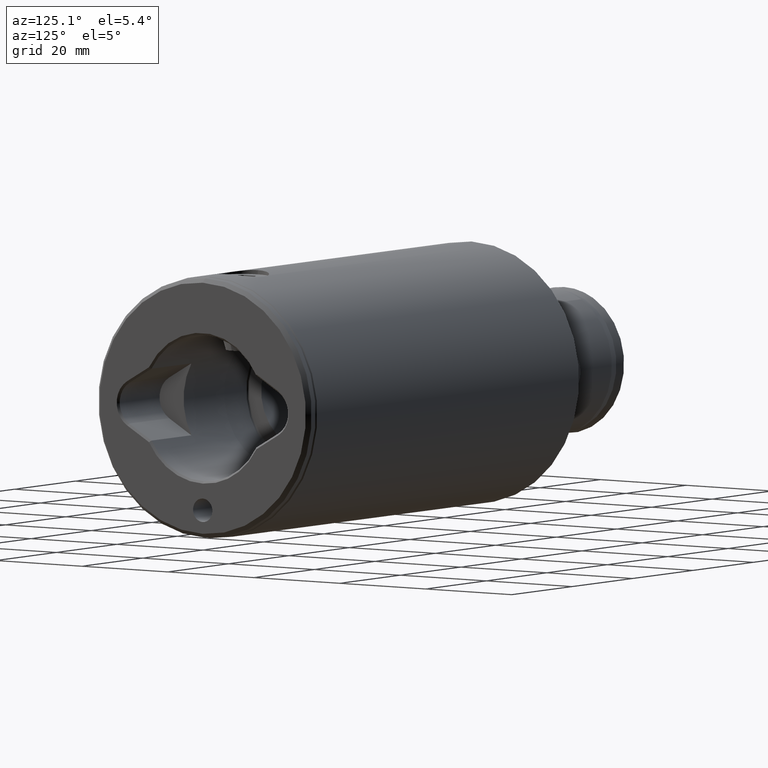
[diagram: clean part render]
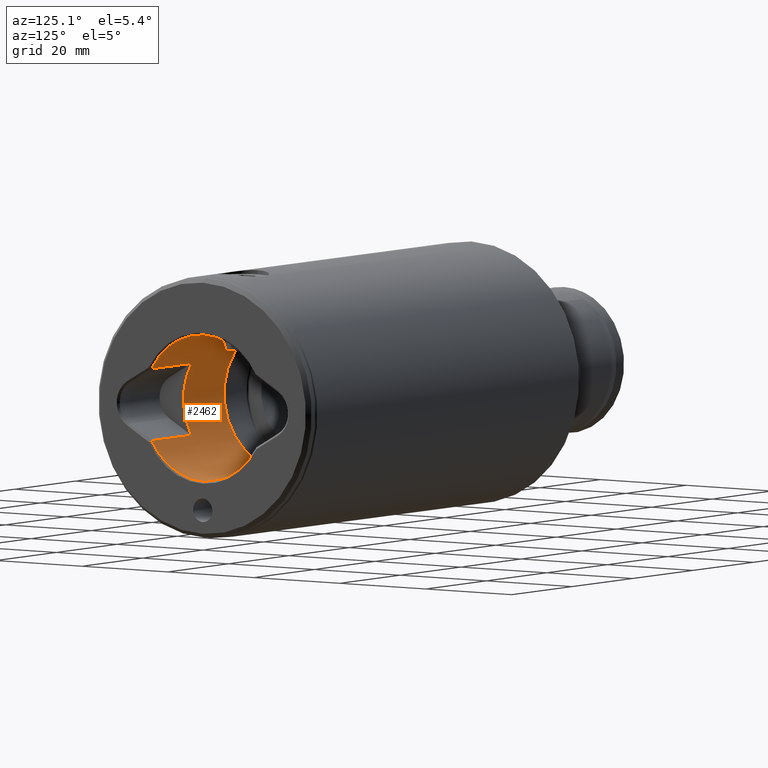
[diagram: same view with one face highlighted and labeled with its STEP entity id]
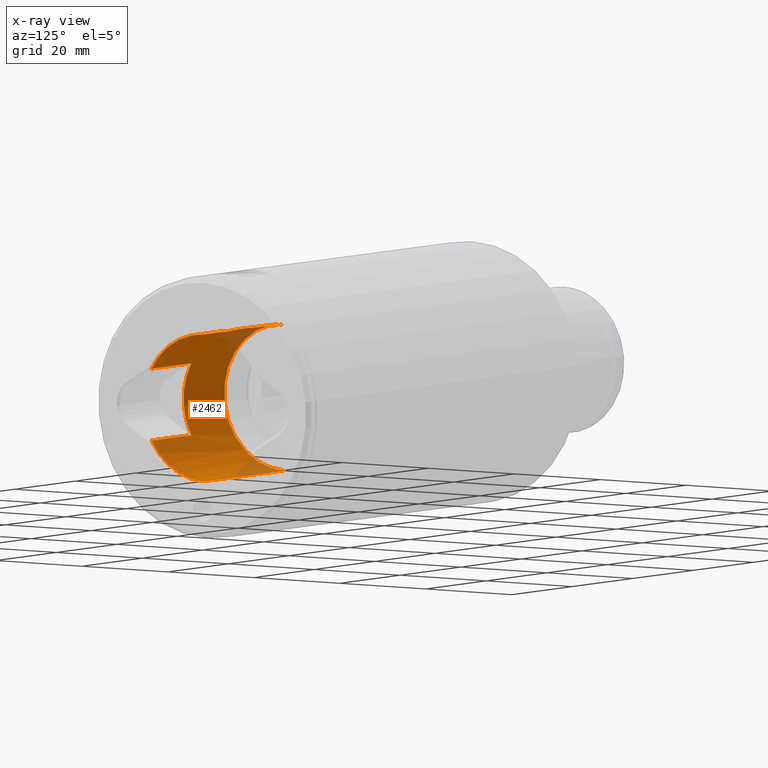
[diagram: x-ray of the same camera — body ghosted, the highlighted face saturated]
A machine part, auxiliary view. The second image highlights one B-rep face of the part: STEP entity #2462.
The next image is the same camera in x-ray: the body ghosted, the highlighted face saturated — about 10% of this face is hidden behind the body in this view.
In plain terms, the highlighted cylindrical surface (partial cylindrical patch) has radius 14 mm, axis along (1, 0, -0).
Its self-contained STEP definition (entity closure, byte-faithful):
#86 = CIRCLE ( 'NONE', #3802, 14.00000000000000000 ) ;
#112 = ORIENTED_EDGE ( 'NONE', *, *, #1510, .T. ) ;
#140 = EDGE_CURVE ( 'NONE', #2719, #2940, #1654, .T. ) ;
#155 = VERTEX_POINT ( 'NONE', #348 ) ;
#199 = CARTESIAN_POINT ( 'NONE',  ( 13.34814020817881900, -4.222608495657211400, 12.49316191261330500 ) ) ;
#259 = CARTESIAN_POINT ( 'NONE',  ( 13.38246741836600200, -4.112521852443303600, 14.15762351158339900 ) ) ;
#263 = CARTESIAN_POINT ( 'NONE',  ( -14.00000000000000000, 0.0000000000000000000, 35.00000000000000000 ) ) ;
#280 = CARTESIAN_POINT ( 'NONE',  ( 14.00000000000000000, 1.714460522639842300E-015, 17.30000000000001100 ) ) ;
#348 = CARTESIAN_POINT ( 'NONE',  ( -14.00000000000000000, 0.0000000000000000000, 27.00000000000000400 ) ) ;
#414 = AXIS2_PLACEMENT_3D ( 'NONE', #4163, #3775, #1491 ) ;
#486 = VECTOR ( 'NONE', #2662, 1000.000000000000000 ) ;
#492 = ORIENTED_EDGE ( 'NONE', *, *, #4626, .T. ) ;
#554 = CIRCLE ( 'NONE', #414, 14.00000000000000000 ) ;
#563 = VERTEX_POINT ( 'NONE', #2526 ) ;
#593 = CARTESIAN_POINT ( 'NONE',  ( 0.0000000000000000000, 0.0000000000000000000, 27.00000000000000400 ) ) ;
#645 = CARTESIAN_POINT ( 'NONE',  ( 13.34842471670386700, -4.221709105675159000, 13.61288369784125500 ) ) ;
#647 = DIRECTION ( 'NONE',  ( -0.0000000000000000000, -0.0000000000000000000, -1.000000000000000000 ) ) ;
#768 = CARTESIAN_POINT ( 'NONE',  ( 14.00000000000000000, 1.714505518806294600E-015, 35.00000000000000000 ) ) ;
#943 = DIRECTION ( 'NONE',  ( -1.000000000000000000, 0.0000000000000000000, 0.0000000000000000000 ) ) ;
#978 = CARTESIAN_POINT ( 'NONE',  ( 13.46980004449780700, -3.817954335628924500, 11.16252591277619100 ) ) ;
#990 = CARTESIAN_POINT ( 'NONE',  ( 13.47025121831974400, -3.816401027698226300, 14.94108567448448700 ) ) ;
#1002 = CARTESIAN_POINT ( 'NONE',  ( 13.93468727037412000, -1.375147865201418200, 17.08093634506139200 ) ) ;
#1022 = VECTOR ( 'NONE', #3091, 1000.000000000000000 ) ;
#1047 = VERTEX_POINT ( 'NONE', #4685 ) ;
#1048 = CARTESIAN_POINT ( 'NONE',  ( 14.00000000000000000, -0.2825293081335522000, 8.800000000000016700 ) ) ;
#1069 = CARTESIAN_POINT ( 'NONE',  ( 6.871987870054847600, -12.19736786006796900, 13.60000000000000100 ) ) ;
#1081 = VERTEX_POINT ( 'NONE', #1319 ) ;
#1101 = CARTESIAN_POINT ( 'NONE',  ( 14.00000000000000000, 9.631873290796157300E-017, 8.800000000000018500 ) ) ;
#1102 = VERTEX_POINT ( 'NONE', #4364 ) ;
#1116 = B_SPLINE_CURVE_WITH_KNOTS ( 'NONE', 3,
 ( #1780, #4434, #1754, #2581, #1002, #4760, #3328, #3269, #2527, #4772, #3640, #2125, #990, #3665, #259, #645, #1415, #2142, #199, #2877, #2893, #978, #2539, #4399, #2550, #1818, #1501, #1854, #4109, #4160, #3358, #4444, #1048, #2959 ),
 .UNSPECIFIED., .F., .F.,
 ( 4, 2, 2, 2, 2, 2, 2, 2, 2, 2, 2, 2, 2, 2, 2, 2, 4 ),
 ( 0.01336677257313558800, 0.01420197166329698800, 0.01503717075345838700, 0.01587236984361978600, 0.01670756893378118300, 0.01754276802394258400, 0.01837796711410397800, 0.01921316620426537200, 0.02004836529442676600, 0.02088356438458816000, 0.02171876347474955400, 0.02255396256491094800, 0.02338916165507234200, 0.02422436074523374000, 0.02505955983539513400, 0.02589475892555653100, 0.02672995801571792200 ),
 .UNSPECIFIED. ) ;
#1219 = EDGE_LOOP ( 'NONE', ( #112, #4217, #2113, #2164, #2886, #492, #2753, #3055, #1331, #2007 ) ) ;
#1319 = CARTESIAN_POINT ( 'NONE',  ( -14.00000000000000000, 0.0000000000000000000, 0.3999999999999975800 ) ) ;
#1331 = ORIENTED_EDGE ( 'NONE', *, *, #3193, .T. ) ;
#1415 = CARTESIAN_POINT ( 'NONE',  ( 13.33932668607541300, -4.249983948492023000, 13.33035233564602800 ) ) ;
#1491 = DIRECTION ( 'NONE',  ( 1.000000000000000000, 1.776356839400250500E-015, 0.0000000000000000000 ) ) ;
#1501 = CARTESIAN_POINT ( 'NONE',  ( 13.75940299173870900, -2.594885082865041200, 9.672738791779419600 ) ) ;
#1510 = EDGE_CURVE ( 'NONE', #155, #1102, #3617, .T. ) ;
#1606 = CARTESIAN_POINT ( 'NONE',  ( -6.871987870054860900, -12.19736786006796000, 13.60000000000000100 ) ) ;
#1654 = LINE ( 'NONE', #2193, #1905 ) ;
#1710 = EDGE_CURVE ( 'NONE', #1102, #4456, #3206, .T. ) ;
#1754 = CARTESIAN_POINT ( 'NONE',  ( 13.99161468989642300, -0.5577369079409406600, 17.27262415576948100 ) ) ;
#1780 = CARTESIAN_POINT ( 'NONE',  ( 14.00000000000000000, 1.714460522639842300E-015, 17.30000000000001100 ) ) ;
#1818 = CARTESIAN_POINT ( 'NONE',  ( 13.71621412343870700, -2.811621855963744000, 9.851067550047297100 ) ) ;
#1854 = CARTESIAN_POINT ( 'NONE',  ( 13.83833422969327900, -2.134269202711547700, 9.364322744435691300 ) ) ;
#1905 = VECTOR ( 'NONE', #3737, 1000.000000000000000 ) ;
#2007 = ORIENTED_EDGE ( 'NONE', *, *, #4034, .F. ) ;
#2039 = EDGE_CURVE ( 'NONE', #4456, #3626, #1116, .T. ) ;
#2057 = LINE ( 'NONE', #768, #1022 ) ;
#2113 = ORIENTED_EDGE ( 'NONE', *, *, #2039, .T. ) ;
#2125 = CARTESIAN_POINT ( 'NONE',  ( 13.50726453199491000, -3.684955578275325800, 15.18530457971731300 ) ) ;
#2142 = CARTESIAN_POINT ( 'NONE',  ( 13.33931646227546100, -4.250016037563900900, 12.77013454126731800 ) ) ;
#2164 = ORIENTED_EDGE ( 'NONE', *, *, #3646, .T. ) ;
#2193 = CARTESIAN_POINT ( 'NONE',  ( -6.871987870054860900, -12.19736786006796000, 35.00000000000000000 ) ) ;
#2235 = LINE ( 'NONE', #3048, #486 ) ;
#2303 = VECTOR ( 'NONE', #2878, 1000.000000000000000 ) ;
#2347 = EDGE_CURVE ( 'NONE', #2719, #4107, #86, .T. ) ;
#2421 = DIRECTION ( 'NONE',  ( -0.0000000000000000000, -0.0000000000000000000, 1.000000000000000000 ) ) ;
#2462 = ADVANCED_FACE ( 'NONE', ( #4906 ), #2556, .F. ) ;
#2475 = CARTESIAN_POINT ( 'NONE',  ( 0.0000000000000000000, 0.0000000000000000000, 13.60000000000000100 ) ) ;
#2526 = CARTESIAN_POINT ( 'NONE',  ( 6.871987870054847600, -12.19736786006796900, 0.3999999999999975800 ) ) ;
#2527 = CARTESIAN_POINT ( 'NONE',  ( 13.71680487309033400, -2.808839068035713400, 16.25153414283998300 ) ) ;
#2539 = CARTESIAN_POINT ( 'NONE',  ( 13.50666436384166700, -3.687250087460743700, 10.91815764166566700 ) ) ;
#2550 = CARTESIAN_POINT ( 'NONE',  ( 13.63059045167135100, -3.201054713646465500, 10.24079459623630400 ) ) ;
#2556 = CYLINDRICAL_SURFACE ( 'NONE', #4114, 14.00000000000000000 ) ;
#2580 = DIRECTION ( 'NONE',  ( 0.0000000000000000000, 0.0000000000000000000, -1.000000000000000000 ) ) ;
#2581 = CARTESIAN_POINT ( 'NONE',  ( 13.95871042767949700, -1.109394107247936700, 17.16228281300921700 ) ) ;
#2662 = DIRECTION ( 'NONE',  ( -0.0000000000000000000, -0.0000000000000000000, 1.000000000000000000 ) ) ;
#2719 = VERTEX_POINT ( 'NONE', #1606 ) ;
#2753 = ORIENTED_EDGE ( 'NONE', *, *, #2347, .F. ) ;
#2877 = CARTESIAN_POINT ( 'NONE',  ( 13.38218684644610900, -4.113434663587249900, 11.94539761381764700 ) ) ;
#2878 = DIRECTION ( 'NONE',  ( 0.0000000000000000000, 0.0000000000000000000, -1.000000000000000000 ) ) ;
#2886 = ORIENTED_EDGE ( 'NONE', *, *, #2992, .T. ) ;
#2893 = CARTESIAN_POINT ( 'NONE',  ( 13.40765285352674700, -4.030773313772060700, 11.67442730767434300 ) ) ;
#2931 = CARTESIAN_POINT ( 'NONE',  ( 0.0000000000000000000, 0.0000000000000000000, 35.00000000000000000 ) ) ;
#2940 = VERTEX_POINT ( 'NONE', #4036 ) ;
#2959 = CARTESIAN_POINT ( 'NONE',  ( 14.00000000000000000, 9.631873290796157300E-017, 8.800000000000018500 ) ) ;
#2992 = EDGE_CURVE ( 'NONE', #1047, #563, #3363, .T. ) ;
#3048 = CARTESIAN_POINT ( 'NONE',  ( 6.871987870054847600, -12.19736786006796900, 35.00000000000000000 ) ) ;
#3055 = ORIENTED_EDGE ( 'NONE', *, *, #140, .T. ) ;
#3091 = DIRECTION ( 'NONE',  ( 0.0000000000000000000, 0.0000000000000000000, -1.000000000000000000 ) ) ;
#3193 = EDGE_CURVE ( 'NONE', #2940, #1081, #554, .T. ) ;
#3206 = LINE ( 'NONE', #4220, #3375 ) ;
#3269 = CARTESIAN_POINT ( 'NONE',  ( 13.75919563460977300, -2.595942206799388700, 16.42640924192964400 ) ) ;
#3272 = DIRECTION ( 'NONE',  ( -1.000000000000000000, 0.0000000000000000000, 0.0000000000000000000 ) ) ;
#3307 = DIRECTION ( 'NONE',  ( -1.000000000000000000, 0.0000000000000000000, 0.0000000000000000000 ) ) ;
#3328 = CARTESIAN_POINT ( 'NONE',  ( 13.83801929084844900, -2.136259010188942000, 16.73448812610611800 ) ) ;
#3333 = DIRECTION ( 'NONE',  ( 1.000000000000000000, 0.0000000000000000000, 0.0000000000000000000 ) ) ;
#3358 = CARTESIAN_POINT ( 'NONE',  ( 13.95884723832719500, -1.107042985317443500, 8.937258822649392100 ) ) ;
#3363 = CIRCLE ( 'NONE', #4573, 14.00000000000000000 ) ;
#3375 = VECTOR ( 'NONE', #2580, 1000.000000000000000 ) ;
#3617 = CIRCLE ( 'NONE', #4620, 14.00000000000000000 ) ;
#3626 = VERTEX_POINT ( 'NONE', #1101 ) ;
#3640 = CARTESIAN_POINT ( 'NONE',  ( 13.58718470714661000, -3.378387852960555500, 15.64324483552802300 ) ) ;
#3646 = EDGE_CURVE ( 'NONE', #3626, #1047, #2057, .T. ) ;
#3665 = CARTESIAN_POINT ( 'NONE',  ( 13.40736410117609800, -4.031770398640691000, 14.42329868750436700 ) ) ;
#3677 = DIRECTION ( 'NONE',  ( 0.0000000000000000000, 0.0000000000000000000, -1.000000000000000000 ) ) ;
#3737 = DIRECTION ( 'NONE',  ( 0.0000000000000000000, 0.0000000000000000000, -1.000000000000000000 ) ) ;
#3775 = DIRECTION ( 'NONE',  ( -0.0000000000000000000, -0.0000000000000000000, -1.000000000000000000 ) ) ;
#3802 = AXIS2_PLACEMENT_3D ( 'NONE', #2475, #4352, #943 ) ;
#4034 = EDGE_CURVE ( 'NONE', #155, #1081, #4292, .T. ) ;
#4036 = CARTESIAN_POINT ( 'NONE',  ( -6.871987870054860900, -12.19736786006796000, 0.3999999999999975800 ) ) ;
#4107 = VERTEX_POINT ( 'NONE', #1069 ) ;
#4109 = CARTESIAN_POINT ( 'NONE',  ( 13.87409137768994100, -1.891086138219405700, 9.233795946973932800 ) ) ;
#4114 = AXIS2_PLACEMENT_3D ( 'NONE', #2931, #3677, #3307 ) ;
#4160 = CARTESIAN_POINT ( 'NONE',  ( 13.93436805029888100, -1.378406825819496100, 9.020159459850502200 ) ) ;
#4163 = CARTESIAN_POINT ( 'NONE',  ( 0.0000000000000000000, 0.0000000000000000000, 0.3999999999999975800 ) ) ;
#4217 = ORIENTED_EDGE ( 'NONE', *, *, #1710, .T. ) ;
#4220 = CARTESIAN_POINT ( 'NONE',  ( 14.00000000000000000, 1.714505518806294600E-015, 35.00000000000000000 ) ) ;
#4292 = LINE ( 'NONE', #263, #2303 ) ;
#4352 = DIRECTION ( 'NONE',  ( -0.0000000000000000000, -0.0000000000000000000, 1.000000000000000000 ) ) ;
#4364 = CARTESIAN_POINT ( 'NONE',  ( 14.00000000000000000, 1.714505518806294600E-015, 27.00000000000000400 ) ) ;
#4399 = CARTESIAN_POINT ( 'NONE',  ( 13.58769960150436700, -3.376420439493240400, 10.45378158391093300 ) ) ;
#4434 = CARTESIAN_POINT ( 'NONE',  ( 14.00000000000000500, -0.2783840924533203000, 17.30000000000001800 ) ) ;
#4444 = CARTESIAN_POINT ( 'NONE',  ( 13.99145706630629400, -0.5604369331183611800, 8.827904003079432000 ) ) ;
#4456 = VERTEX_POINT ( 'NONE', #280 ) ;
#4573 = AXIS2_PLACEMENT_3D ( 'NONE', #4823, #647, #3333 ) ;
#4620 = AXIS2_PLACEMENT_3D ( 'NONE', #593, #2421, #3272 ) ;
#4626 = EDGE_CURVE ( 'NONE', #563, #4107, #2235, .T. ) ;
#4685 = CARTESIAN_POINT ( 'NONE',  ( 14.00000000000000000, 1.714505518806294600E-015, 0.3999999999999975800 ) ) ;
#4760 = CARTESIAN_POINT ( 'NONE',  ( 13.87457091845613300, -1.887544119491206400, 16.86793879810547700 ) ) ;
#4772 = CARTESIAN_POINT ( 'NONE',  ( 13.63061436005979300, -3.201041237455418900, 15.85940078557754700 ) ) ;
#4823 = CARTESIAN_POINT ( 'NONE',  ( 0.0000000000000000000, 0.0000000000000000000, 0.3999999999999975800 ) ) ;
#4906 = FACE_OUTER_BOUND ( 'NONE', #1219, .T. ) ;